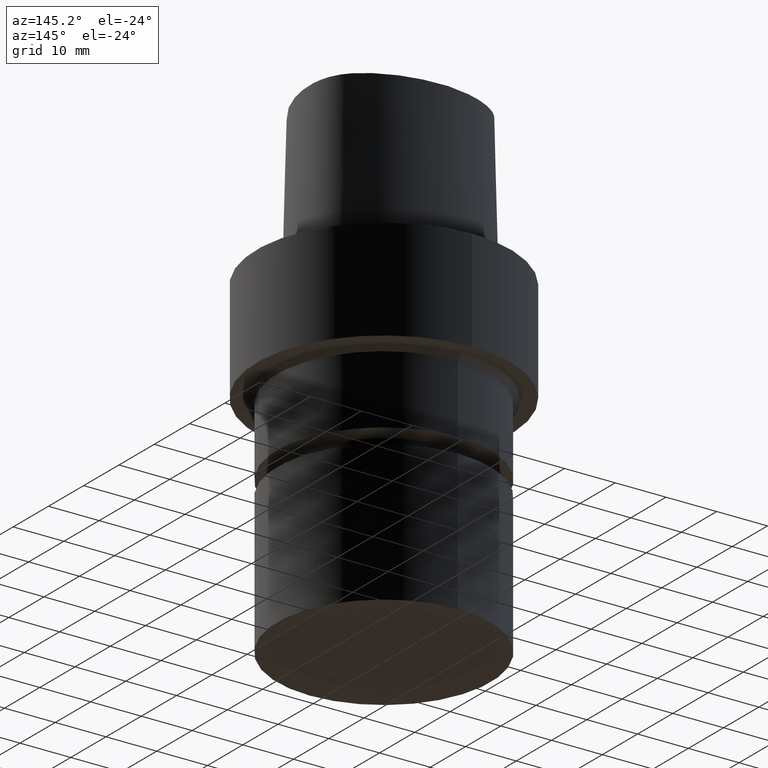
[diagram: clean part render]
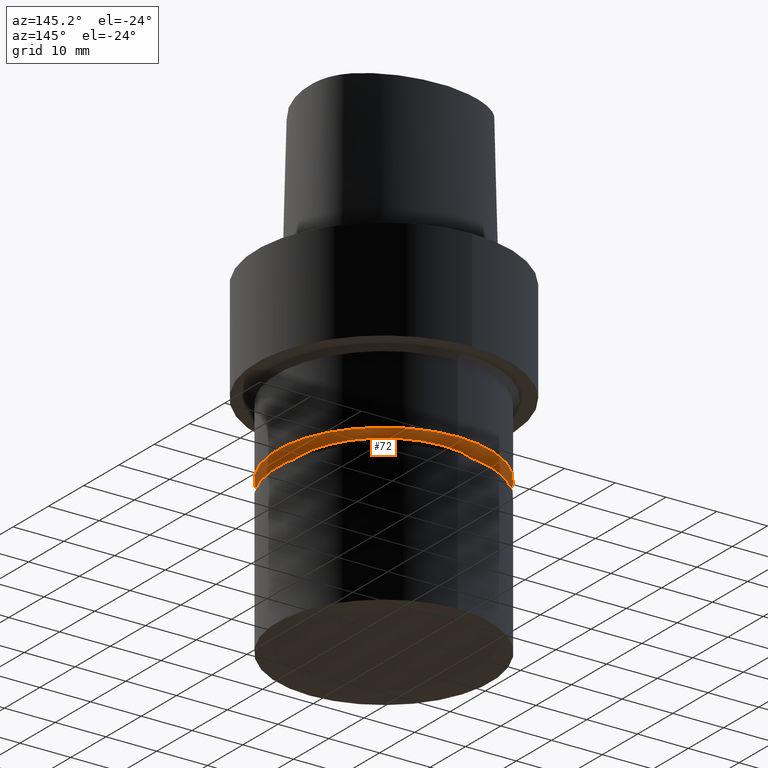
[diagram: same view with one face highlighted and labeled with its STEP entity id]
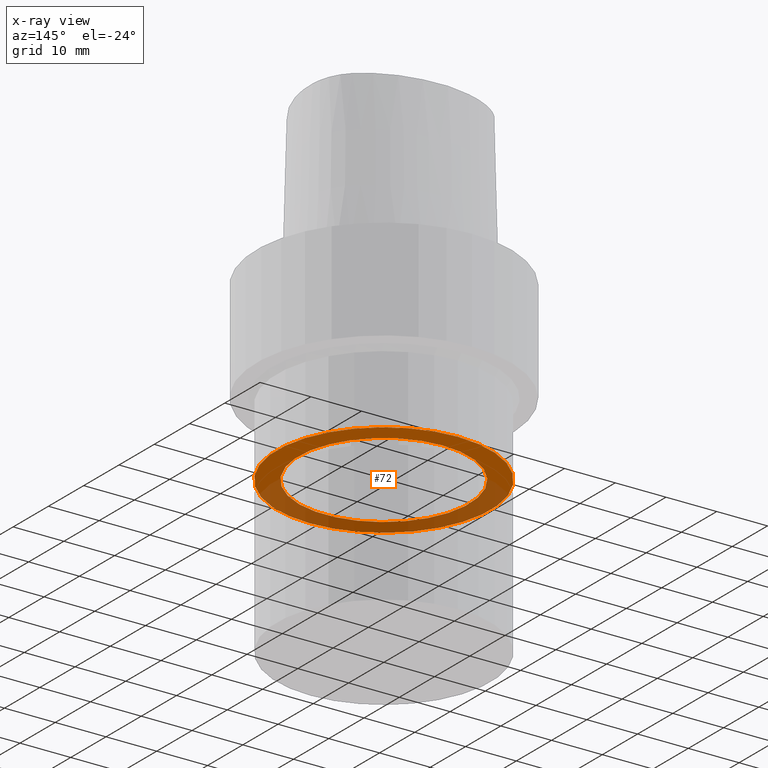
[diagram: x-ray of the same camera — body ghosted, the highlighted face saturated]
A machine part, auxiliary view. The second image highlights one B-rep face of the part: STEP entity #72.
The next image is the same camera in x-ray: the body ghosted, the highlighted face saturated — about 46% of this face is hidden behind the body in this view.
In plain terms, the highlighted planar face has unit normal (0, -0, -1).
Its self-contained STEP definition (entity closure, byte-faithful):
#72=ADVANCED_FACE('Unnamed[1]',(#178,#179),#180,.T.);
#99=EDGE_CURVE('Unnamed[1]',#221,#221,#222,.T.);
#145=EDGE_CURVE('Unnamed[1]',#287,#287,#288,.T.);
#178=FACE_BOUND('',#317,.T.);
#179=FACE_OUTER_BOUND('',#318,.T.);
#180=PLANE('',#319);
#221=VERTEX_POINT('',#371);
#222=CIRCLE('',#372,21.0000000000003);
#287=VERTEX_POINT('',#982);
#288=CIRCLE('',#983,16.7499999999907);
#317=EDGE_LOOP('',(#1000));
#318=EDGE_LOOP('',(#1001));
#319=AXIS2_PLACEMENT_3D('',#1002,#1003,#1004);
#371=CARTESIAN_POINT('',(2.11251572852918E-015,21.0000000000003,-34.5));
#372=AXIS2_PLACEMENT_3D('',#1049,#1050,#1051);
#982=CARTESIAN_POINT('',(2.11251572852914E-015,16.7499999999907,-34.4999999999992));
#983=AXIS2_PLACEMENT_3D('',#1111,#1112,#1113);
#1000=ORIENTED_EDGE('',*,*,#145,.F.);
#1001=ORIENTED_EDGE('',*,*,#99,.T.);
#1002=CARTESIAN_POINT('',(2.11251572852916E-015,18.8749999999955,-34.4999999999996));
#1003=DIRECTION('',(6.12323399573677E-017,-1.77095252944558E-013,-1.0));
#1004=DIRECTION('',(1.08391295804064E-029,1.0,-1.77095252944558E-013));
#1049=CARTESIAN_POINT('',(2.11251572852918E-015,4.22503145705836E-015,-34.5));
#1050=DIRECTION('',(6.12323399573677E-017,1.22464679914735E-016,-1.0));
#1051=DIRECTION('',(-1.23259516440783E-032,1.0,1.22464679914735E-016));
#1111=CARTESIAN_POINT('',(2.11251572852914E-015,4.22503145705827E-015,-34.4999999999992));
#1112=DIRECTION('',(6.12323399573677E-017,1.22464679914735E-016,-1.0));
#1113=DIRECTION('',(-1.23259516440783E-032,1.0,1.22464679914735E-016));